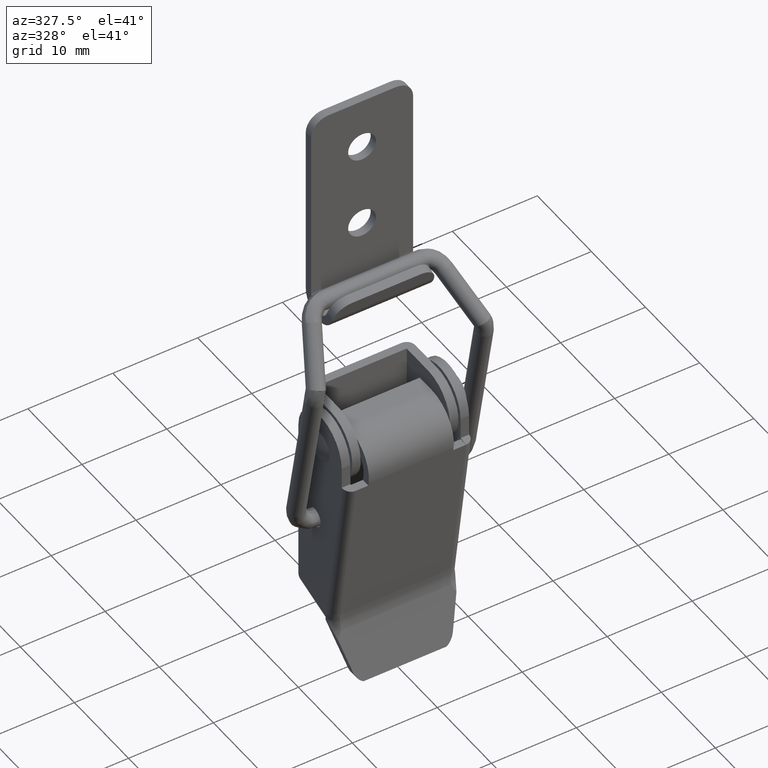
[diagram: clean part render]
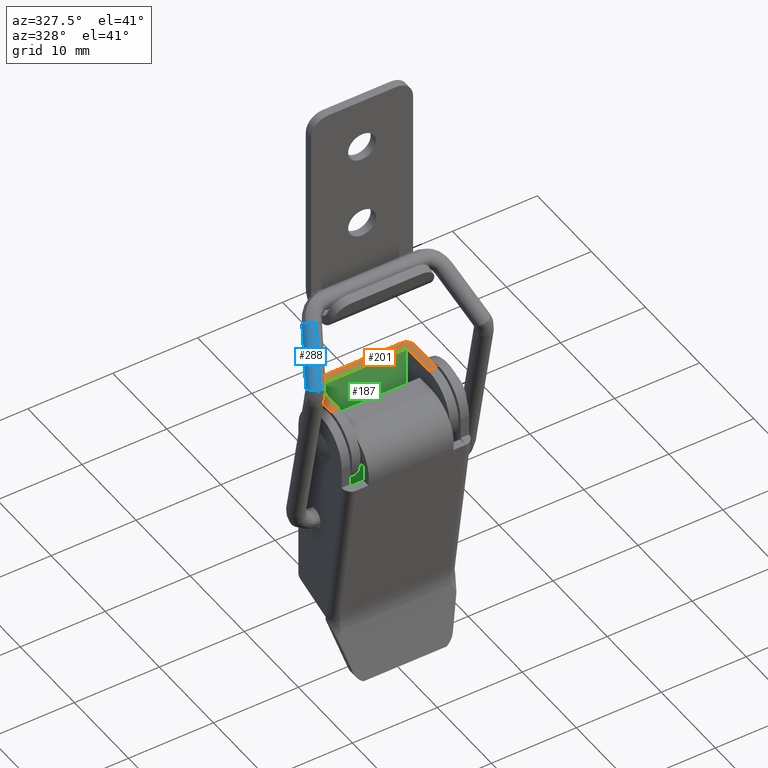
[diagram: same view with three faces highlighted in distinct colors, each labeled with its STEP entity id]
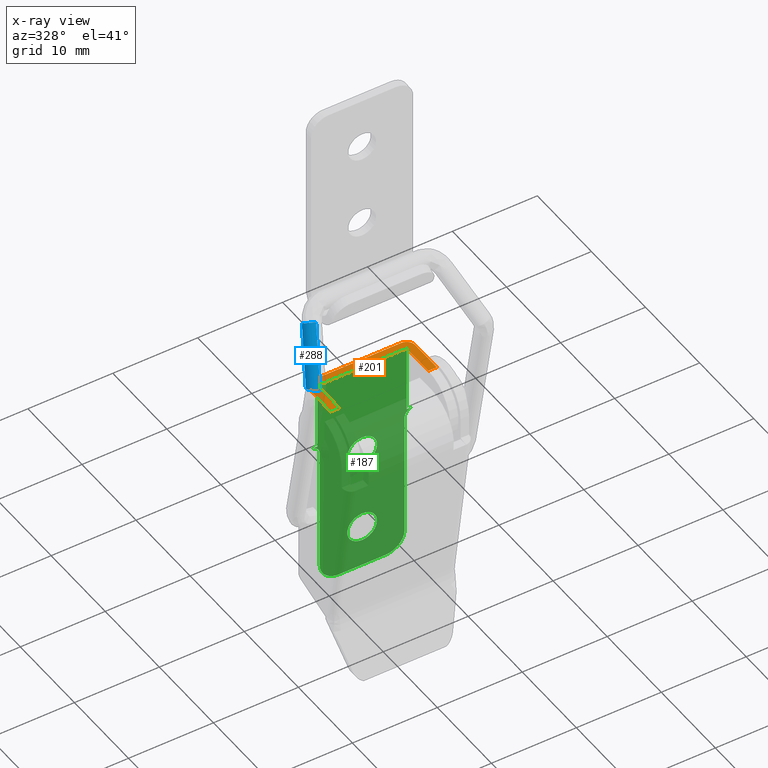
[diagram: x-ray of the same camera — body ghosted, the three highlighted faces saturated]
A machine part, auxiliary view with three faces highlighted in distinct colors.
The next image is the same camera in x-ray (body ghosted, the three faces saturated) — at least one of them is partly hidden behind the body in this view.
Their STEP definitions:

[orange] entity #201 — the highlighted planar face has unit normal (0, 0, -1).
#201=ADVANCED_FACE('',(#469),#468,.F.);
#468=PLANE('',#1666);
#469=FACE_OUTER_BOUND('',#1667,.T.);
#1663=CARTESIAN_POINT('',(7.50000000000E+00,-5.50000000000E+00,0.00000000000E+00));
#1664=DIRECTION('',(0.00000000000E+00,0.00000000000E+00,-1.00000000000E+00));
#1665=DIRECTION('',(-1.00000000000E+00,0.00000000000E+00,0.00000000000E+00));
#1666=AXIS2_PLACEMENT_3D('',#1663,#1664,#1665);
#1667=EDGE_LOOP('',(#3703,#3704,#3705,#3706,#3707,#3708,#3709,#3710,#3711,#3712));
#3703=ORIENTED_EDGE('',*,*,#4344,.T.);
#3704=ORIENTED_EDGE('',*,*,#4284,.T.);
#3705=ORIENTED_EDGE('',*,*,#4303,.T.);
#3706=ORIENTED_EDGE('',*,*,#4345,.T.);
#3707=ORIENTED_EDGE('',*,*,#4340,.F.);
#3708=ORIENTED_EDGE('',*,*,#4331,.F.);
#3709=ORIENTED_EDGE('',*,*,#4332,.F.);
#3710=ORIENTED_EDGE('',*,*,#4289,.F.);
#3711=ORIENTED_EDGE('',*,*,#4323,.F.);
#3712=ORIENTED_EDGE('',*,*,#4346,.F.);
#4284=EDGE_CURVE('',#4633,#4626,#4634,.T.);
#4289=EDGE_CURVE('',#4661,#4668,#4669,.T.);
#4303=EDGE_CURVE('',#4626,#4765,#4766,.T.);
#4323=EDGE_CURVE('',#4897,#4661,#4898,.T.);
#4331=EDGE_CURVE('',#4946,#4932,#4953,.T.);
#4332=EDGE_CURVE('',#4668,#4946,#4959,.T.);
#4340=EDGE_CURVE('',#4932,#5011,#5012,.T.);
#4344=EDGE_CURVE('',#5038,#4633,#5039,.T.);
#4345=EDGE_CURVE('',#4765,#5011,#5045,.T.);
#4346=EDGE_CURVE('',#5038,#4897,#5051,.T.);
#4626=VERTEX_POINT('',#6863);
#4633=VERTEX_POINT('',#6867);
#4634=CIRCLE('',#6871,1.00000000000E+00);
#4661=VERTEX_POINT('',#6885);
#4668=VERTEX_POINT('',#6889);
#4669=LINE('',#6890,#6891);
#4765=VERTEX_POINT('',#6952);
#4766=LINE('',#6953,#6954);
#4897=VERTEX_POINT('',#7032);
#4898=LINE('',#7033,#7034);
#4932=VERTEX_POINT('',#7055);
#4946=VERTEX_POINT('',#7064);
#4953=LINE('',#7069,#7070);
#4959=LINE('',#7072,#7073);
#5011=VERTEX_POINT('',#7106);
#5012=LINE('',#7107,#7108);
#5038=VERTEX_POINT('',#7123);
#5039=LINE('',#7124,#7125);
#5045=CIRCLE('',#7130,1.00000000000E+00);
#5051=LINE('',#7131,#7132);
#6863=CARTESIAN_POINT('',(5.25000000000E+00,0.00000000000E+00,0.00000000000E+00));
#6867=CARTESIAN_POINT('',(6.25000000000E+00,-1.00000000000E+00,0.00000000000E+00));
#6868=CARTESIAN_POINT('',(5.25000000000E+00,-1.00000000000E+00,0.00000000000E+00));
#6869=DIRECTION('',(0.00000000000E+00,-0.00000000000E+00,1.00000000000E+00));
#6870=DIRECTION('',(1.00000000000E+00,-0.00000000000E+00,-0.00000000000E+00));
#6871=AXIS2_PLACEMENT_3D('',#6868,#6869,#6870);
#6885=CARTESIAN_POINT('',(5.25000000000E+00,-1.00000000000E+00,0.00000000000E+00));
#6889=CARTESIAN_POINT('',(-5.25000000000E+00,-1.00000000000E+00,0.00000000000E+00));
#6890=CARTESIAN_POINT('',(5.25000000000E+00,-1.00000000000E+00,0.00000000000E+00));
#6891=VECTOR('',#6892,1.05000000000E+01);
#6892=DIRECTION('',(-1.00000000000E+00,0.00000000000E+00,0.00000000000E+00));
#6952=CARTESIAN_POINT('',(-5.25000000000E+00,0.00000000000E+00,0.00000000000E+00));
#6953=CARTESIAN_POINT('',(5.25000000000E+00,0.00000000000E+00,0.00000000000E+00));
#6954=VECTOR('',#6955,1.05000000000E+01);
#6955=DIRECTION('',(-1.00000000000E+00,0.00000000000E+00,0.00000000000E+00));
#7032=CARTESIAN_POINT('',(5.25000000000E+00,-5.00000000000E+00,2.84217094304E-14));
#7033=CARTESIAN_POINT('',(5.25000000000E+00,-5.00000000000E+00,0.00000000000E+00));
#7034=VECTOR('',#7035,4.00000000000E+00);
#7035=DIRECTION('',(0.00000000000E+00,1.00000000000E+00,0.00000000000E+00));
#7055=CARTESIAN_POINT('',(-6.25000000000E+00,-5.00000000000E+00,0.00000000000E+00));
#7064=CARTESIAN_POINT('',(-5.25000000000E+00,-5.00000000000E+00,0.00000000000E+00));
#7069=CARTESIAN_POINT('',(-5.25000000000E+00,-5.00000000000E+00,0.00000000000E+00));
#7070=VECTOR('',#7071,1.00000000000E+00);
#7071=DIRECTION('',(-1.00000000000E+00,0.00000000000E+00,0.00000000000E+00));
#7072=CARTESIAN_POINT('',(-5.25000000000E+00,-1.00000000000E+00,0.00000000000E+00));
#7073=VECTOR('',#7074,4.00000000000E+00);
#7074=DIRECTION('',(0.00000000000E+00,-1.00000000000E+00,0.00000000000E+00));
#7106=CARTESIAN_POINT('',(-6.25000000000E+00,-1.00000000000E+00,0.00000000000E+00));
#7107=CARTESIAN_POINT('',(-6.25000000000E+00,-5.00000000000E+00,0.00000000000E+00));
#7108=VECTOR('',#7109,4.00000000000E+00);
#7109=DIRECTION('',(0.00000000000E+00,1.00000000000E+00,0.00000000000E+00));
#7123=CARTESIAN_POINT('',(6.25000000000E+00,-5.00000000000E+00,2.84217094304E-14));
#7124=CARTESIAN_POINT('',(6.25000000000E+00,-5.00000000000E+00,0.00000000000E+00));
#7125=VECTOR('',#7126,4.00000000000E+00);
#7126=DIRECTION('',(0.00000000000E+00,1.00000000000E+00,0.00000000000E+00));
#7127=CARTESIAN_POINT('',(-5.25000000000E+00,-1.00000000000E+00,0.00000000000E+00));
#7128=DIRECTION('',(0.00000000000E+00,-0.00000000000E+00,1.00000000000E+00));
#7129=DIRECTION('',(1.00000000000E+00,-0.00000000000E+00,-0.00000000000E+00));
#7130=AXIS2_PLACEMENT_3D('',#7127,#7128,#7129);
#7131=CARTESIAN_POINT('',(6.25000000000E+00,-5.00000000000E+00,2.84217094304E-14));
#7132=VECTOR('',#7133,1.00000000000E+00);
#7133=DIRECTION('',(-1.00000000000E+00,0.00000000000E+00,0.00000000000E+00));

[blue] entity #288 — the highlighted cylindrical surface (edge-blend (fillet) strip) has radius 1 mm, axis along (-0.3069, -0.5943, -0.7434).
#288=ADVANCED_FACE('',(#1348),#1347,.T.);
#1347=CYLINDRICAL_SURFACE('',#3494,1.00000000000E+00);
#1348=FACE_OUTER_BOUND('',#3495,.T.);
#3491=CARTESIAN_POINT('',(-9.88288521511E+00,-5.17936228558E+00,-6.42786778024E+00));
#3492=DIRECTION('',(-3.06903911006E-01,-5.87774189076E-01,-7.48552932040E-01));
#3493=DIRECTION('',(8.51829470865E-17,7.86509482238E-01,-6.17578201000E-01));
#3494=AXIS2_PLACEMENT_3D('',#3491,#3492,#3493);
#3495=EDGE_LOOP('',(#4160,#4161,#4162,#4163,#4164,#4165));
#4160=ORIENTED_EDGE('',*,*,#4529,.T.);
#4161=ORIENTED_EDGE('',*,*,#4533,.T.);
#4162=ORIENTED_EDGE('',*,*,#4564,.T.);
#4163=ORIENTED_EDGE('',*,*,#4516,.F.);
#4164=ORIENTED_EDGE('',*,*,#4509,.F.);
#4165=ORIENTED_EDGE('',*,*,#4565,.F.);
#4509=EDGE_CURVE('',#6126,#6133,#6134,.T.);
#4516=EDGE_CURVE('',#6133,#6180,#6181,.T.);
#4529=EDGE_CURVE('',#6268,#6261,#6269,.T.);
#4533=EDGE_CURVE('',#6261,#6288,#6295,.T.);
#4564=EDGE_CURVE('',#6288,#6180,#6499,.T.);
#4565=EDGE_CURVE('',#6268,#6126,#6505,.T.);
#6126=VERTEX_POINT('',#7805);
#6133=VERTEX_POINT('',#7816);
#6134=(BOUNDED_CURVE() B_SPLINE_CURVE(3,(#7817,#7818,#7819,#7820,#7821,#7822),.UNSPECIFIED.,.F.,.F.) B_SPLINE_CURVE_WITH_KNOTS((4,1,1,4),(8.19788877939E-01,8.75170186016E-01,9.20329220149E-01,1.00000000000E+00),.UNSPECIFIED.) CURVE() GEOMETRIC_REPRESENTATION_ITEM() RATIONAL_B_SPLINE_CURVE((1.00000000000E+00,1.00000000000E+00,1.00000000000E+00,1.00000000000E+00,1.00000000000E+00,1.00000000000E+00)) REPRESENTATION_ITEM('') );
#6180=VERTEX_POINT('',#7885);
#6181=(BOUNDED_CURVE() B_SPLINE_CURVE(3,(#7886,#7887,#7888,#7889,#7890,#7891,#7892,#7893,#7894,#7895),.UNSPECIFIED.,.F.,.F.) B_SPLINE_CURVE_WITH_KNOTS((4,1,1,1,1,1,1,4),(0.00000000000E+00,5.04975190639E-02,1.00998285540E-01,1.51158076159E-01,2.00869154087E-01,2.50118869871E-01,2.96769400131E-01,3.19409016761E-01),.UNSPECIFIED.) CURVE() GEOMETRIC_REPRESENTATION_ITEM() RATIONAL_B_SPLINE_CURVE((1.00000000000E+00,1.00000000000E+00,1.00000000000E+00,1.00000000000E+00,1.00000000000E+00,1.00000000000E+00,1.00000000000E+00,1.00000000000E+00,1.00000000000E+00,1.00000000000E+00)) REPRESENTATION_ITEM('') );
#6261=VERTEX_POINT('',#7972);
#6268=VERTEX_POINT('',#7977);
#6269=(BOUNDED_CURVE() B_SPLINE_CURVE(3,(#7978,#7979,#7980,#7981,#7982,#7983),.UNSPECIFIED.,.F.,.F.) B_SPLINE_CURVE_WITH_KNOTS((4,1,1,4),(1.05492226115E+00,1.11820114572E+00,1.18022523256E+00,1.23579119560E+00),.UNSPECIFIED.) CURVE() GEOMETRIC_REPRESENTATION_ITEM() RATIONAL_B_SPLINE_CURVE((1.00000000000E+00,1.00000000000E+00,1.00000000000E+00,1.00000000000E+00,1.00000000000E+00,1.00000000000E+00)) REPRESENTATION_ITEM('') );
#6288=VERTEX_POINT('',#8005);
#6295=(BOUNDED_CURVE() B_SPLINE_CURVE(3,(#8013,#8014,#8015,#8016,#8017,#8018,#8019,#8020,#8021,#8022),.UNSPECIFIED.,.F.,.F.) B_SPLINE_CURVE_WITH_KNOTS((4,1,1,1,1,1,1,4),(2.35791195599E-01,2.63390274047E-01,2.95681151268E-01,3.61895704266E-01,4.15928072216E-01,4.77047471907E-01,5.36162227123E-01,5.54978580741E-01),.UNSPECIFIED.) CURVE() GEOMETRIC_REPRESENTATION_ITEM() RATIONAL_B_SPLINE_CURVE((1.00000000000E+00,1.00000000000E+00,1.00000000000E+00,1.00000000000E+00,1.00000000000E+00,1.00000000000E+00,1.00000000000E+00,1.00000000000E+00,1.00000000000E+00,1.00000000000E+00)) REPRESENTATION_ITEM('') );
#6499=(BOUNDED_CURVE() B_SPLINE_CURVE(1,(#8251,#8252),.UNSPECIFIED.,.F.,.F.) B_SPLINE_CURVE_WITH_KNOTS((2,2),(9.07585360105E-02,8.63318590222E-01),.UNSPECIFIED.) CURVE() GEOMETRIC_REPRESENTATION_ITEM() RATIONAL_B_SPLINE_CURVE((1.00000000000E+00,1.00000000000E+00)) REPRESENTATION_ITEM('') );
#6505=(BOUNDED_CURVE() B_SPLINE_CURVE(1,(#8253,#8254),.UNSPECIFIED.,.F.,.F.) B_SPLINE_CURVE_WITH_KNOTS((2,2),(8.34659412233E-02,9.15671287950E-01),.UNSPECIFIED.) CURVE() GEOMETRIC_REPRESENTATION_ITEM() RATIONAL_B_SPLINE_CURVE((7.50000000000E-01,7.50000000000E-01)) REPRESENTATION_ITEM('') );
#7805=CARTESIAN_POINT('',(-9.84097560533E+00,-5.88523226904E+00,-5.70917810370E+00));
#7816=CARTESIAN_POINT('',(-1.06525698047E+01,-5.15803117647E+00,-5.72019134120E+00));
#7817=CARTESIAN_POINT('',(-9.84097560533E+00,-5.88523226904E+00,-5.70917810370E+00));
#7818=CARTESIAN_POINT('',(-9.95123435640E+00,-5.85934651774E+00,-5.67594668013E+00));
#7819=CARTESIAN_POINT('',(-1.01484909143E+01,-5.77854735677E+00,-5.63247323678E+00));
#7820=CARTESIAN_POINT('',(-1.04505337894E+01,-5.53996140398E+00,-5.62670964502E+00));
#7821=CARTESIAN_POINT('',(-1.05970724615E+01,-5.31025461050E+00,-5.67098419298E+00));
#7822=CARTESIAN_POINT('',(-1.06525698047E+01,-5.15803117647E+00,-5.72019134120E+00));
#7885=CARTESIAN_POINT('',(-9.70944225416E+00,-4.06067946807E+00,-6.62241052190E+00));
#7886=CARTESIAN_POINT('',(-1.06525698047E+01,-5.15803117647E+00,-5.72019134120E+00));
#7887=CARTESIAN_POINT('',(-1.06877455385E+01,-5.06154780105E+00,-5.75138017744E+00));
#7888=CARTESIAN_POINT('',(-1.07275431307E+01,-4.86406200728E+00,-5.83059283913E+00));
#7889=CARTESIAN_POINT('',(-1.06980722741E+01,-4.57899257494E+00,-5.98230619068E+00));
#7890=CARTESIAN_POINT('',(-1.05768470878E+01,-4.33085667820E+00,-6.14997600879E+00));
#7891=CARTESIAN_POINT('',(-1.03760870360E+01,-4.14446588261E+00,-6.31511559832E+00));
#7892=CARTESIAN_POINT('',(-1.01248724792E+01,-4.03603228252E+00,-6.46632670255E+00));
#7893=CARTESIAN_POINT('',(-9.89264813174E+00,-4.02070708423E+00,-6.56943969852E+00));
#7894=CARTESIAN_POINT('',(-9.75442964527E+00,-4.04202068276E+00,-6.61556456609E+00));
#7895=CARTESIAN_POINT('',(-9.70944225416E+00,-4.06067946807E+00,-6.62241052190E+00));
#7972=CARTESIAN_POINT('',(-8.61822912708E+00,-1.26192702466E+00,-7.58351165896E-01));
#7977=CARTESIAN_POINT('',(-7.74740707393E+00,-1.87569797091E+00,-6.01296857132E-01));
#7978=CARTESIAN_POINT('',(-7.74734972781E+00,-1.87570914371E+00,-6.01311011913E-01));
#7979=CARTESIAN_POINT('',(-7.87335607598E+00,-1.85116849739E+00,-5.70200976934E-01));
#7980=CARTESIAN_POINT('',(-8.12529112757E+00,-1.76168257130E+00,-5.41942958426E-01));
#7981=CARTESIAN_POINT('',(-8.43250821430E+00,-1.53613342905E+00,-6.04546266773E-01));
#7982=CARTESIAN_POINT('',(-8.57073346829E+00,-1.35189286441E+00,-7.02540670518E-01));
#7983=CARTESIAN_POINT('',(-8.61822912708E+00,-1.26192702466E+00,-7.58351165896E-01));
#8005=CARTESIAN_POINT('',(-7.76558438943E+00,-3.37863880660E-01,-1.88124344988E+00));
#8013=CARTESIAN_POINT('',(-8.61822912708E+00,-1.26192702466E+00,-7.58351165896E-01));
#8014=CARTESIAN_POINT('',(-8.64181976317E+00,-1.21724185891E+00,-7.86071701200E-01));
#8015=CARTESIAN_POINT('',(-8.68347094775E+00,-1.11872002687E+00,-8.51313238456E-01));
#8016=CARTESIAN_POINT('',(-8.72628518099E+00,-9.10379890320E-01,-1.00805414477E+00));
#8017=CARTESIAN_POINT('',(-8.68280774851E+00,-6.69892749662E-01,-1.22707226986E+00));
#8018=CARTESIAN_POINT('',(-8.50122711984E+00,-4.50486919951E-01,-1.48542731984E+00));
#8019=CARTESIAN_POINT('',(-8.22775135955E+00,-3.23365209953E-01,-1.70382312414E+00));
#8020=CARTESIAN_POINT('',(-7.95878098217E+00,-3.07717461610E-01,-1.82730499981E+00));
#8021=CARTESIAN_POINT('',(-7.80317806469E+00,-3.30561920068E-01,-1.87195074628E+00));
#8022=CARTESIAN_POINT('',(-7.76558438943E+00,-3.37863880660E-01,-1.88124344988E+00));
#8251=CARTESIAN_POINT('',(-7.76558438758E+00,-3.37854700330E-01,-1.88125065616E+00));
#8252=CARTESIAN_POINT('',(-9.70944225416E+00,-4.06067946807E+00,-6.62241052190E+00));
#8253=CARTESIAN_POINT('',(-7.74723530563E+00,-1.87573199220E+00,-6.01339988737E-01));
#8254=CARTESIAN_POINT('',(-9.84116819930E+00,-5.88597645119E+00,-5.70853983482E+00));

[green] entity #187 — the highlighted planar face has unit normal (0, 1, 0).
#187=ADVANCED_FACE('',(#322,#323,#324),#321,.F.);
#321=PLANE('',#1589);
#322=FACE_OUTER_BOUND('',#1590,.T.);
#323=FACE_BOUND('',#1591,.T.);
#324=FACE_BOUND('',#1592,.T.);
#1586=CARTESIAN_POINT('',(-7.20000000000E+00,-1.00000000000E+00,-2.86000000000E+01));
#1587=DIRECTION('',(0.00000000000E+00,1.00000000000E+00,0.00000000000E+00));
#1588=DIRECTION('',(0.00000000000E+00,0.00000000000E+00,1.00000000000E+00));
#1589=AXIS2_PLACEMENT_3D('',#1586,#1587,#1588);
#1590=EDGE_LOOP('',(#3615,#3616,#3617,#3618,#3619,#3620,#3621,#3622,#3623,#3624,#3625,#3626));
#1591=EDGE_LOOP('',(#3627,#3628));
#1592=EDGE_LOOP('',(#3629,#3630));
#3615=ORIENTED_EDGE('',*,*,#4287,.F.);
#3616=ORIENTED_EDGE('',*,*,#4288,.F.);
#3617=ORIENTED_EDGE('',*,*,#4289,.T.);
#3618=ORIENTED_EDGE('',*,*,#4290,.T.);
#3619=ORIENTED_EDGE('',*,*,#4291,.T.);
#3620=ORIENTED_EDGE('',*,*,#4292,.F.);
#3621=ORIENTED_EDGE('',*,*,#4293,.T.);
#3622=ORIENTED_EDGE('',*,*,#4294,.T.);
#3623=ORIENTED_EDGE('',*,*,#4295,.T.);
#3624=ORIENTED_EDGE('',*,*,#4296,.T.);
#3625=ORIENTED_EDGE('',*,*,#4297,.T.);
#3626=ORIENTED_EDGE('',*,*,#4298,.F.);
#3627=ORIENTED_EDGE('',*,*,#4299,.F.);
#3628=ORIENTED_EDGE('',*,*,#4300,.F.);
#3629=ORIENTED_EDGE('',*,*,#4301,.F.);
#3630=ORIENTED_EDGE('',*,*,#4302,.F.);
#4287=EDGE_CURVE('',#4653,#4654,#4655,.T.);
#4288=EDGE_CURVE('',#4661,#4653,#4662,.T.);
#4289=EDGE_CURVE('',#4661,#4668,#4669,.T.);
#4290=EDGE_CURVE('',#4668,#4675,#4676,.T.);
#4291=EDGE_CURVE('',#4675,#4682,#4683,.T.);
#4292=EDGE_CURVE('',#4689,#4682,#4690,.T.);
#4293=EDGE_CURVE('',#4689,#4696,#4697,.T.);
#4294=EDGE_CURVE('',#4696,#4703,#4704,.T.);
#4295=EDGE_CURVE('',#4703,#4710,#4711,.T.);
#4296=EDGE_CURVE('',#4710,#4717,#4718,.T.);
#4297=EDGE_CURVE('',#4717,#4724,#4725,.T.);
#4298=EDGE_CURVE('',#4654,#4724,#4731,.T.);
#4299=EDGE_CURVE('',#4737,#4738,#4739,.T.);
#4300=EDGE_CURVE('',#4738,#4737,#4745,.T.);
#4301=EDGE_CURVE('',#4751,#4752,#4753,.T.);
#4302=EDGE_CURVE('',#4752,#4751,#4759,.T.);
#4653=VERTEX_POINT('',#6880);
#4654=VERTEX_POINT('',#6881);
#4655=LINE('',#6882,#6883);
#4661=VERTEX_POINT('',#6885);
#4662=LINE('',#6886,#6887);
#4668=VERTEX_POINT('',#6889);
#4669=LINE('',#6890,#6891);
#4675=VERTEX_POINT('',#6893);
#4676=LINE('',#6894,#6895);
#4682=VERTEX_POINT('',#6897);
#4683=LINE('',#6898,#6899);
#4689=VERTEX_POINT('',#6901);
#4690=CIRCLE('',#6905,1.00000000000E+00);
#4696=VERTEX_POINT('',#6906);
#4697=LINE('',#6907,#6908);
#4703=VERTEX_POINT('',#6910);
#4704=CIRCLE('',#6914,2.25000000000E+00);
#4710=VERTEX_POINT('',#6915);
#4711=LINE('',#6916,#6917);
#4717=VERTEX_POINT('',#6919);
#4718=CIRCLE('',#6923,2.25000000000E+00);
#4724=VERTEX_POINT('',#6924);
#4725=LINE('',#6925,#6926);
#4731=CIRCLE('',#6931,1.00000000000E+00);
#4737=VERTEX_POINT('',#6932);
#4738=VERTEX_POINT('',#6933);
#4739=CIRCLE('',#6937,1.75000000000E+00);
#4745=CIRCLE('',#6941,1.75000000000E+00);
#4751=VERTEX_POINT('',#6942);
#4752=VERTEX_POINT('',#6943);
#4753=CIRCLE('',#6947,1.75000000000E+00);
#4759=CIRCLE('',#6951,1.75000000000E+00);
#6880=CARTESIAN_POINT('',(5.25000000000E+00,-1.00000000000E+00,-8.00000000000E+00));
#6881=CARTESIAN_POINT('',(6.00000000000E+00,-1.00000000000E+00,-8.00000000000E+00));
#6882=CARTESIAN_POINT('',(5.25000000000E+00,-1.00000000000E+00,-8.00000000000E+00));
#6883=VECTOR('',#6884,7.50000000000E-01);
#6884=DIRECTION('',(1.00000000000E+00,0.00000000000E+00,0.00000000000E+00));
#6885=CARTESIAN_POINT('',(5.25000000000E+00,-1.00000000000E+00,0.00000000000E+00));
#6886=CARTESIAN_POINT('',(5.25000000000E+00,-1.00000000000E+00,0.00000000000E+00));
#6887=VECTOR('',#6888,8.00000000000E+00);
#6888=DIRECTION('',(0.00000000000E+00,0.00000000000E+00,-1.00000000000E+00));
#6889=CARTESIAN_POINT('',(-5.25000000000E+00,-1.00000000000E+00,0.00000000000E+00));
#6890=CARTESIAN_POINT('',(5.25000000000E+00,-1.00000000000E+00,0.00000000000E+00));
#6891=VECTOR('',#6892,1.05000000000E+01);
#6892=DIRECTION('',(-1.00000000000E+00,0.00000000000E+00,0.00000000000E+00));
#6893=CARTESIAN_POINT('',(-5.25000000000E+00,-1.00000000000E+00,-8.00000000000E+00));
#6894=CARTESIAN_POINT('',(-5.25000000000E+00,-1.00000000000E+00,0.00000000000E+00));
#6895=VECTOR('',#6896,8.00000000000E+00);
#6896=DIRECTION('',(0.00000000000E+00,0.00000000000E+00,-1.00000000000E+00));
#6897=CARTESIAN_POINT('',(-6.00000000000E+00,-1.00000000000E+00,-8.00000000000E+00));
#6898=CARTESIAN_POINT('',(-5.25000000000E+00,-1.00000000000E+00,-8.00000000000E+00));
#6899=VECTOR('',#6900,7.50000000000E-01);
#6900=DIRECTION('',(-1.00000000000E+00,0.00000000000E+00,0.00000000000E+00));
#6901=CARTESIAN_POINT('',(-5.00000000000E+00,-1.00000000000E+00,-9.00000000000E+00));
#6902=CARTESIAN_POINT('',(-6.00000000000E+00,-1.00000000000E+00,-9.00000000000E+00));
#6903=DIRECTION('',(0.00000000000E+00,-1.00000000000E+00,0.00000000000E+00));
#6904=DIRECTION('',(-0.00000000000E+00,-0.00000000000E+00,-1.00000000000E+00));
#6905=AXIS2_PLACEMENT_3D('',#6902,#6903,#6904);
#6906=CARTESIAN_POINT('',(-5.00000000000E+00,-1.00000000000E+00,-2.37500000000E+01));
#6907=CARTESIAN_POINT('',(-5.00000000000E+00,-1.00000000000E+00,-9.00000000000E+00));
#6908=VECTOR('',#6909,1.47500000000E+01);
#6909=DIRECTION('',(0.00000000000E+00,0.00000000000E+00,-1.00000000000E+00));
#6910=CARTESIAN_POINT('',(-2.75000000000E+00,-1.00000000000E+00,-2.60000000000E+01));
#6911=CARTESIAN_POINT('',(-2.75000000000E+00,-1.00000000000E+00,-2.37500000000E+01));
#6912=DIRECTION('',(0.00000000000E+00,-1.00000000000E+00,0.00000000000E+00));
#6913=DIRECTION('',(-0.00000000000E+00,-0.00000000000E+00,-1.00000000000E+00));
#6914=AXIS2_PLACEMENT_3D('',#6911,#6912,#6913);
#6915=CARTESIAN_POINT('',(2.75000000000E+00,-1.00000000000E+00,-2.60000000000E+01));
#6916=CARTESIAN_POINT('',(-2.75000000000E+00,-1.00000000000E+00,-2.60000000000E+01));
#6917=VECTOR('',#6918,5.50000000000E+00);
#6918=DIRECTION('',(1.00000000000E+00,0.00000000000E+00,0.00000000000E+00));
#6919=CARTESIAN_POINT('',(5.00000000000E+00,-1.00000000000E+00,-2.37500000000E+01));
#6920=CARTESIAN_POINT('',(2.75000000000E+00,-1.00000000000E+00,-2.37500000000E+01));
#6921=DIRECTION('',(0.00000000000E+00,-1.00000000000E+00,0.00000000000E+00));
#6922=DIRECTION('',(-0.00000000000E+00,-0.00000000000E+00,-1.00000000000E+00));
#6923=AXIS2_PLACEMENT_3D('',#6920,#6921,#6922);
#6924=CARTESIAN_POINT('',(5.00000000000E+00,-1.00000000000E+00,-9.00000000000E+00));
#6925=CARTESIAN_POINT('',(5.00000000000E+00,-1.00000000000E+00,-2.37500000000E+01));
#6926=VECTOR('',#6927,1.47500000000E+01);
#6927=DIRECTION('',(0.00000000000E+00,0.00000000000E+00,1.00000000000E+00));
#6928=CARTESIAN_POINT('',(6.00000000000E+00,-1.00000000000E+00,-9.00000000000E+00));
#6929=DIRECTION('',(0.00000000000E+00,-1.00000000000E+00,0.00000000000E+00));
#6930=DIRECTION('',(-0.00000000000E+00,-0.00000000000E+00,-1.00000000000E+00));
#6931=AXIS2_PLACEMENT_3D('',#6928,#6929,#6930);
#6932=CARTESIAN_POINT('',(2.22044604925E-16,-1.00000000000E+00,-1.27500000000E+01));
#6933=CARTESIAN_POINT('',(0.00000000000E+00,-1.00000000000E+00,-9.25000000000E+00));
#6934=CARTESIAN_POINT('',(0.00000000000E+00,-1.00000000000E+00,-1.10000000000E+01));
#6935=DIRECTION('',(-0.00000000000E+00,-1.00000000000E+00,0.00000000000E+00));
#6936=DIRECTION('',(-1.22460635382E-16,0.00000000000E+00,1.00000000000E+00));
#6937=AXIS2_PLACEMENT_3D('',#6934,#6935,#6936);
#6938=CARTESIAN_POINT('',(0.00000000000E+00,-1.00000000000E+00,-1.10000000000E+01));
#6939=DIRECTION('',(-0.00000000000E+00,-1.00000000000E+00,0.00000000000E+00));
#6940=DIRECTION('',(-1.22460635382E-16,0.00000000000E+00,1.00000000000E+00));
#6941=AXIS2_PLACEMENT_3D('',#6938,#6939,#6940);
#6942=CARTESIAN_POINT('',(2.22044604925E-16,-1.00000000000E+00,-2.27500000000E+01));
#6943=CARTESIAN_POINT('',(0.00000000000E+00,-1.00000000000E+00,-1.92500000000E+01));
#6944=CARTESIAN_POINT('',(0.00000000000E+00,-1.00000000000E+00,-2.10000000000E+01));
#6945=DIRECTION('',(-0.00000000000E+00,-1.00000000000E+00,0.00000000000E+00));
#6946=DIRECTION('',(-1.22460635382E-16,0.00000000000E+00,1.00000000000E+00));
#6947=AXIS2_PLACEMENT_3D('',#6944,#6945,#6946);
#6948=CARTESIAN_POINT('',(0.00000000000E+00,-1.00000000000E+00,-2.10000000000E+01));
#6949=DIRECTION('',(-0.00000000000E+00,-1.00000000000E+00,0.00000000000E+00));
#6950=DIRECTION('',(-1.22460635382E-16,0.00000000000E+00,1.00000000000E+00));
#6951=AXIS2_PLACEMENT_3D('',#6948,#6949,#6950);